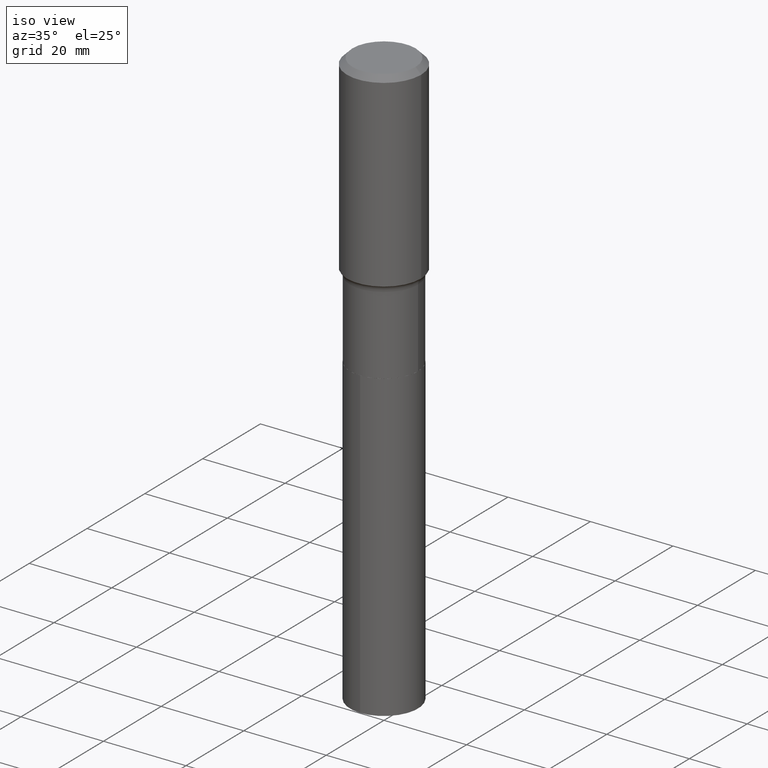
[diagram: clean part render]
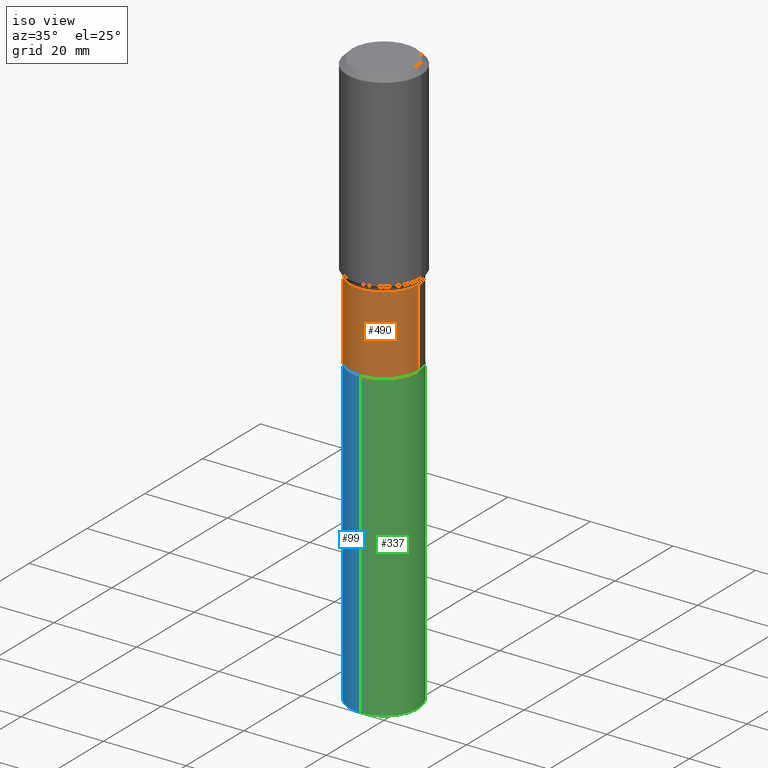
[diagram: same view with three faces highlighted in distinct colors, each labeled with its STEP entity id]
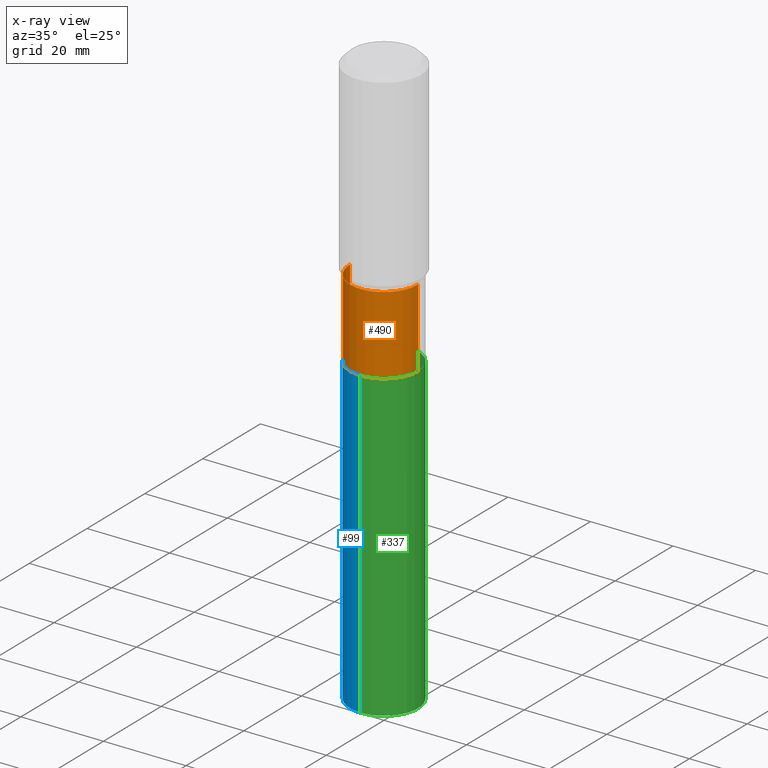
[diagram: x-ray of the same camera — body ghosted, the three highlighted faces saturated]
A machine part, iso view with three faces highlighted in distinct colors.
The next image is the same camera in x-ray (body ghosted, the three faces saturated) — at least one of them is partly hidden behind the body in this view.
Their STEP definitions:

[orange] entity #490 — the highlighted cylindrical surface (partial cylindrical patch) has radius 8.2499 mm, axis along (-0, 0, 1).
#16 = DIRECTION ( 'NONE',  ( 1.000000000000000000, -6.982962677686265922E-15, 4.876176775795934672E-29 ) ) ;
#17 = VERTEX_POINT ( 'NONE', #468 ) ;
#20 = VERTEX_POINT ( 'NONE', #84 ) ;
#22 = CIRCLE ( 'NONE', #161, 0.3247999999999999776 ) ;
#47 = EDGE_CURVE ( 'NONE', #17, #20, #431, .T. ) ;
#53 = CARTESIAN_POINT ( 'NONE',  ( 0.000000000000000000, 0.000000000000000000, 0.000000000000000000 ) ) ;
#58 = CARTESIAN_POINT ( 'NONE',  ( 0.3247999999999999221, -8.800977010821908091E-15, -1.871100000000000207 ) ) ;
#84 = CARTESIAN_POINT ( 'NONE',  ( -0.3247999999999999221, -5.528263337083809819E-15, -1.871100000000000207 ) ) ;
#101 = VERTEX_POINT ( 'NONE', #58 ) ;
#110 = DIRECTION ( 'NONE',  ( -2.445468806185136877E-29, 3.491481338843145188E-15, 1.000000000000000000 ) ) ;
#113 = CARTESIAN_POINT ( 'NONE',  ( 0.3247999999999999776, -1.140736783026831626E-14, -2.617599999999999927 ) ) ;
#120 = LINE ( 'NONE', #428, #456 ) ;
#126 = ORIENTED_EDGE ( 'NONE', *, *, #476, .F. ) ;
#146 = DIRECTION ( 'NONE',  ( 1.000000000000000000, -6.982962677686265922E-15, 0.000000000000000000 ) ) ;
#161 = AXIS2_PLACEMENT_3D ( 'NONE', #185, #344, #146 ) ;
#185 = CARTESIAN_POINT ( 'NONE',  ( 6.401259147070212571E-29, -9.139301552555818359E-15, -2.617599999999999927 ) ) ;
#193 = CYLINDRICAL_SURFACE ( 'NONE', #264, 0.3247999999999999221 ) ;
#197 = DIRECTION ( 'NONE',  ( -2.445468806185136597E-29, 3.491481338843145583E-15, 1.000000000000000000 ) ) ;
#237 = AXIS2_PLACEMENT_3D ( 'NONE', #397, #274, #394 ) ;
#264 = AXIS2_PLACEMENT_3D ( 'NONE', #53, #197, #16 ) ;
#272 = VERTEX_POINT ( 'NONE', #113 ) ;
#274 = DIRECTION ( 'NONE',  ( -2.445468806185136597E-29, 3.491481338843145583E-15, 1.000000000000000000 ) ) ;
#297 = EDGE_CURVE ( 'NONE', #17, #272, #22, .T. ) ;
#309 = VECTOR ( 'NONE', #395, 39.37007874015748143 ) ;
#344 = DIRECTION ( 'NONE',  ( -2.445468806185136597E-29, 3.491481338843145583E-15, 1.000000000000000000 ) ) ;
#350 = ORIENTED_EDGE ( 'NONE', *, *, #437, .T. ) ;
#361 = EDGE_LOOP ( 'NONE', ( #409, #440, #350, #126 ) ) ;
#391 = FACE_OUTER_BOUND ( 'NONE', #361, .T. ) ;
#394 = DIRECTION ( 'NONE',  ( 1.000000000000000000, -6.982962677686265133E-15, 0.000000000000000000 ) ) ;
#395 = DIRECTION ( 'NONE',  ( -2.445468806185136877E-29, 3.491481338843145188E-15, 1.000000000000000000 ) ) ;
#397 = CARTESIAN_POINT ( 'NONE',  ( 4.575716683253009173E-29, -6.532910733109410979E-15, -1.871100000000000207 ) ) ;
#409 = ORIENTED_EDGE ( 'NONE', *, *, #47, .F. ) ;
#428 = CARTESIAN_POINT ( 'NONE',  ( 0.3247999999999999221, -2.268066277712498689E-15, 1.583782216778519264E-29 ) ) ;
#431 = LINE ( 'NONE', #436, #309 ) ;
#436 = CARTESIAN_POINT ( 'NONE',  ( -0.3247999999999999221, 2.307842805748804850E-15, -1.597670117314792893E-29 ) ) ;
#437 = EDGE_CURVE ( 'NONE', #272, #101, #120, .T. ) ;
#440 = ORIENTED_EDGE ( 'NONE', *, *, #297, .T. ) ;
#456 = VECTOR ( 'NONE', #110, 39.37007874015748143 ) ;
#468 = CARTESIAN_POINT ( 'NONE',  ( -0.3247999999999999776, -5.528263337083809030E-15, -2.617599999999999927 ) ) ;
#476 = EDGE_CURVE ( 'NONE', #20, #101, #489, .T. ) ;
#489 = CIRCLE ( 'NONE', #237, 0.3247999999999999221 ) ;
#490 = ADVANCED_FACE ( 'NONE', ( #391 ), #193, .T. ) ;

[blue] entity #99 — the highlighted cylindrical surface (partial cylindrical patch) has radius 8.2499 mm, axis along (-0, 0, 1).
#7 = EDGE_CURVE ( 'NONE', #323, #155, #291, .T. ) ;
#9 = ORIENTED_EDGE ( 'NONE', *, *, #357, .F. ) ;
#12 = VERTEX_POINT ( 'NONE', #405 ) ;
#15 = DIRECTION ( 'NONE',  ( -6.982962677686265922E-15, -1.000000000000000000, 3.364344819783575691E-15 ) ) ;
#21 = DIRECTION ( 'NONE',  ( -2.445569451297734298E-29, 3.491337209313541680E-15, 1.000000000000000000 ) ) ;
#24 = CARTESIAN_POINT ( 'NONE',  ( 6.402481881473307615E-29, -9.141047293225240652E-15, -2.618100000000000094 ) ) ;
#31 = CARTESIAN_POINT ( 'NONE',  ( -2.268066277712363794E-15, -0.3248000000000192955, -5.527490953372105054 ) ) ;
#41 = DIRECTION ( 'NONE',  ( -2.445569451297734017E-29, 3.491337209313541680E-15, 1.000000000000000000 ) ) ;
#44 = CARTESIAN_POINT ( 'NONE',  ( 2.307842805748940929E-15, 0.3247999999999908183, -2.618100000000001426 ) ) ;
#51 = AXIS2_PLACEMENT_3D ( 'NONE', #271, #472, #353 ) ;
#54 = ORIENTED_EDGE ( 'NONE', *, *, #485, .F. ) ;
#68 = LINE ( 'NONE', #332, #249 ) ;
#87 = CYLINDRICAL_SURFACE ( 'NONE', #420, 0.3247999999999999776 ) ;
#99 = ADVANCED_FACE ( 'NONE', ( #435 ), #87, .T. ) ;
#121 = VECTOR ( 'NONE', #41, 39.37007874015748143 ) ;
#123 = DIRECTION ( 'NONE',  ( -2.445569451297734298E-29, 3.491337209313541680E-15, 1.000000000000000000 ) ) ;
#128 = CARTESIAN_POINT ( 'NONE',  ( 6.402481881473307615E-29, -9.141047293225240652E-15, -2.618100000000000094 ) ) ;
#132 = EDGE_CURVE ( 'NONE', #155, #12, #68, .T. ) ;
#143 = CARTESIAN_POINT ( 'NONE',  ( 2.307842805748868748E-15, 0.3247999999999908183, -2.618100000000001426 ) ) ;
#155 = VERTEX_POINT ( 'NONE', #31 ) ;
#175 = ORIENTED_EDGE ( 'NONE', *, *, #132, .T. ) ;
#192 = EDGE_LOOP ( 'NONE', ( #9, #230, #175, #54 ) ) ;
#221 = LINE ( 'NONE', #143, #121 ) ;
#230 = ORIENTED_EDGE ( 'NONE', *, *, #7, .T. ) ;
#249 = VECTOR ( 'NONE', #488, 39.37007874015748143 ) ;
#271 = CARTESIAN_POINT ( 'NONE',  ( 1.351759951892211871E-28, -1.929871218517347483E-14, -5.527490953372105942 ) ) ;
#291 = CIRCLE ( 'NONE', #51, 0.3247999999999999776 ) ;
#313 = VERTEX_POINT ( 'NONE', #44 ) ;
#323 = VERTEX_POINT ( 'NONE', #424 ) ;
#332 = CARTESIAN_POINT ( 'NONE',  ( -2.268066277712435186E-15, -0.3248000000000091370, -2.618099999999999206 ) ) ;
#333 = CIRCLE ( 'NONE', #348, 0.3247999999999999776 ) ;
#348 = AXIS2_PLACEMENT_3D ( 'NONE', #128, #123, #15 ) ;
#353 = DIRECTION ( 'NONE',  ( -6.982962677686265922E-15, -1.000000000000000000, 3.364344819783575691E-15 ) ) ;
#357 = EDGE_CURVE ( 'NONE', #323, #313, #221, .T. ) ;
#398 = DIRECTION ( 'NONE',  ( -6.982962677686265922E-15, -1.000000000000000000, 3.364344819783575691E-15 ) ) ;
#405 = CARTESIAN_POINT ( 'NONE',  ( -2.268066277712435186E-15, -0.3248000000000091370, -2.618099999999999206 ) ) ;
#420 = AXIS2_PLACEMENT_3D ( 'NONE', #24, #21, #398 ) ;
#424 = CARTESIAN_POINT ( 'NONE',  ( 2.307842805748940534E-15, 0.3247999999999806597, -5.527490953372106830 ) ) ;
#435 = FACE_OUTER_BOUND ( 'NONE', #192, .T. ) ;
#472 = DIRECTION ( 'NONE',  ( -2.445569451297734298E-29, 3.491337209313541680E-15, 1.000000000000000000 ) ) ;
#485 = EDGE_CURVE ( 'NONE', #313, #12, #333, .T. ) ;
#488 = DIRECTION ( 'NONE',  ( -2.445569451297734017E-29, 3.491337209313541680E-15, 1.000000000000000000 ) ) ;

[green] entity #337 — the highlighted cylindrical surface (partial cylindrical patch) has radius 8.2499 mm, axis along (-0, 0, 1).
#2 = CYLINDRICAL_SURFACE ( 'NONE', #80, 0.3247999999999999776 ) ;
#12 = VERTEX_POINT ( 'NONE', #405 ) ;
#31 = CARTESIAN_POINT ( 'NONE',  ( -2.268066277712363794E-15, -0.3248000000000192955, -5.527490953372105054 ) ) ;
#41 = DIRECTION ( 'NONE',  ( -2.445569451297734017E-29, 3.491337209313541680E-15, 1.000000000000000000 ) ) ;
#44 = CARTESIAN_POINT ( 'NONE',  ( 2.307842805748940929E-15, 0.3247999999999908183, -2.618100000000001426 ) ) ;
#48 = DIRECTION ( 'NONE',  ( -6.982962677686265922E-15, -1.000000000000000000, 3.364344819783575691E-15 ) ) ;
#49 = EDGE_CURVE ( 'NONE', #155, #323, #325, .T. ) ;
#68 = LINE ( 'NONE', #332, #249 ) ;
#74 = AXIS2_PLACEMENT_3D ( 'NONE', #229, #470, #48 ) ;
#80 = AXIS2_PLACEMENT_3D ( 'NONE', #459, #491, #261 ) ;
#121 = VECTOR ( 'NONE', #41, 39.37007874015748143 ) ;
#132 = EDGE_CURVE ( 'NONE', #155, #12, #68, .T. ) ;
#143 = CARTESIAN_POINT ( 'NONE',  ( 2.307842805748868748E-15, 0.3247999999999908183, -2.618100000000001426 ) ) ;
#148 = FACE_OUTER_BOUND ( 'NONE', #464, .T. ) ;
#155 = VERTEX_POINT ( 'NONE', #31 ) ;
#159 = ORIENTED_EDGE ( 'NONE', *, *, #357, .T. ) ;
#199 = ORIENTED_EDGE ( 'NONE', *, *, #132, .F. ) ;
#203 = DIRECTION ( 'NONE',  ( -6.982962677686265922E-15, -1.000000000000000000, 3.364344819783575691E-15 ) ) ;
#204 = ORIENTED_EDGE ( 'NONE', *, *, #465, .F. ) ;
#221 = LINE ( 'NONE', #143, #121 ) ;
#229 = CARTESIAN_POINT ( 'NONE',  ( 6.402481881473307615E-29, -9.141047293225240652E-15, -2.618100000000000094 ) ) ;
#242 = ORIENTED_EDGE ( 'NONE', *, *, #49, .T. ) ;
#249 = VECTOR ( 'NONE', #488, 39.37007874015748143 ) ;
#261 = DIRECTION ( 'NONE',  ( -6.982962677686265922E-15, -1.000000000000000000, 3.364344819783575691E-15 ) ) ;
#313 = VERTEX_POINT ( 'NONE', #44 ) ;
#316 = CARTESIAN_POINT ( 'NONE',  ( 1.351759951892211871E-28, -1.929871218517347483E-14, -5.527490953372105942 ) ) ;
#323 = VERTEX_POINT ( 'NONE', #424 ) ;
#325 = CIRCLE ( 'NONE', #341, 0.3247999999999999776 ) ;
#332 = CARTESIAN_POINT ( 'NONE',  ( -2.268066277712435186E-15, -0.3248000000000091370, -2.618099999999999206 ) ) ;
#337 = ADVANCED_FACE ( 'NONE', ( #148 ), #2, .T. ) ;
#341 = AXIS2_PLACEMENT_3D ( 'NONE', #316, #362, #203 ) ;
#357 = EDGE_CURVE ( 'NONE', #323, #313, #221, .T. ) ;
#362 = DIRECTION ( 'NONE',  ( -2.445569451297734298E-29, 3.491337209313541680E-15, 1.000000000000000000 ) ) ;
#369 = CIRCLE ( 'NONE', #74, 0.3247999999999999776 ) ;
#405 = CARTESIAN_POINT ( 'NONE',  ( -2.268066277712435186E-15, -0.3248000000000091370, -2.618099999999999206 ) ) ;
#424 = CARTESIAN_POINT ( 'NONE',  ( 2.307842805748940534E-15, 0.3247999999999806597, -5.527490953372106830 ) ) ;
#459 = CARTESIAN_POINT ( 'NONE',  ( 6.402481881473307615E-29, -9.141047293225240652E-15, -2.618100000000000094 ) ) ;
#464 = EDGE_LOOP ( 'NONE', ( #242, #159, #204, #199 ) ) ;
#465 = EDGE_CURVE ( 'NONE', #12, #313, #369, .T. ) ;
#470 = DIRECTION ( 'NONE',  ( -2.445569451297734298E-29, 3.491337209313541680E-15, 1.000000000000000000 ) ) ;
#488 = DIRECTION ( 'NONE',  ( -2.445569451297734017E-29, 3.491337209313541680E-15, 1.000000000000000000 ) ) ;
#491 = DIRECTION ( 'NONE',  ( -2.445569451297734298E-29, 3.491337209313541680E-15, 1.000000000000000000 ) ) ;